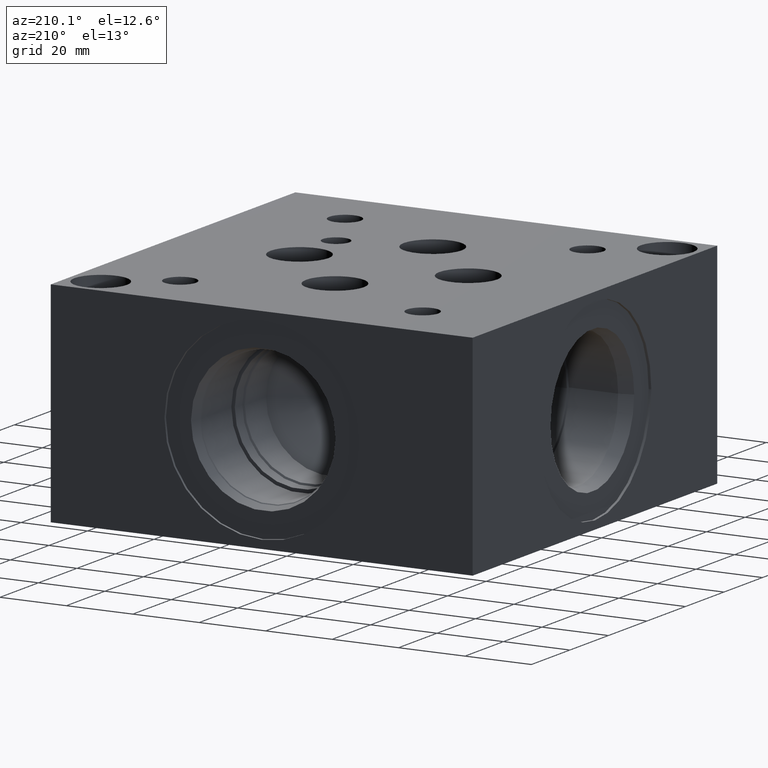
[diagram: clean part render]
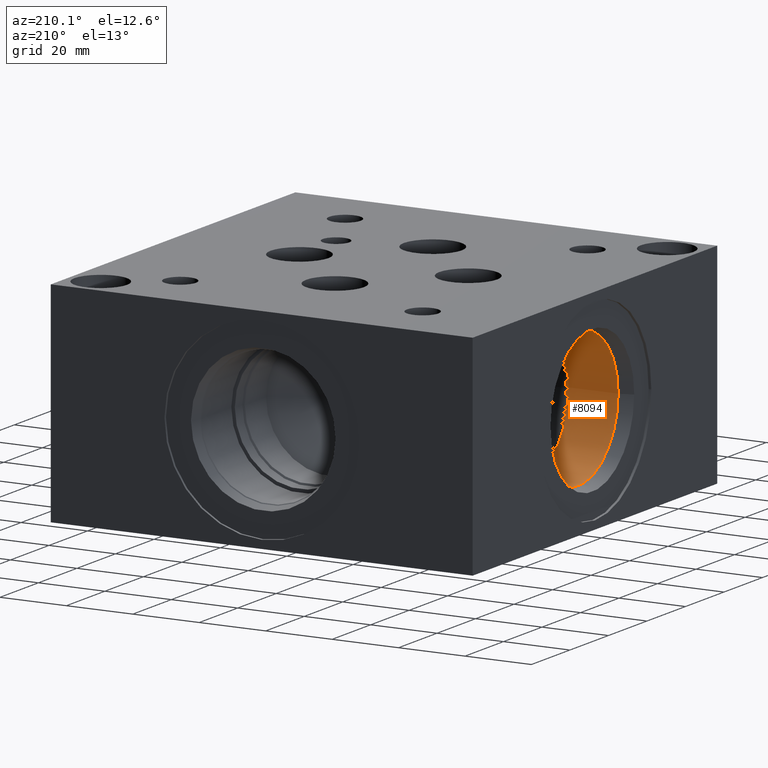
[diagram: same view with one face highlighted and labeled with its STEP entity id]
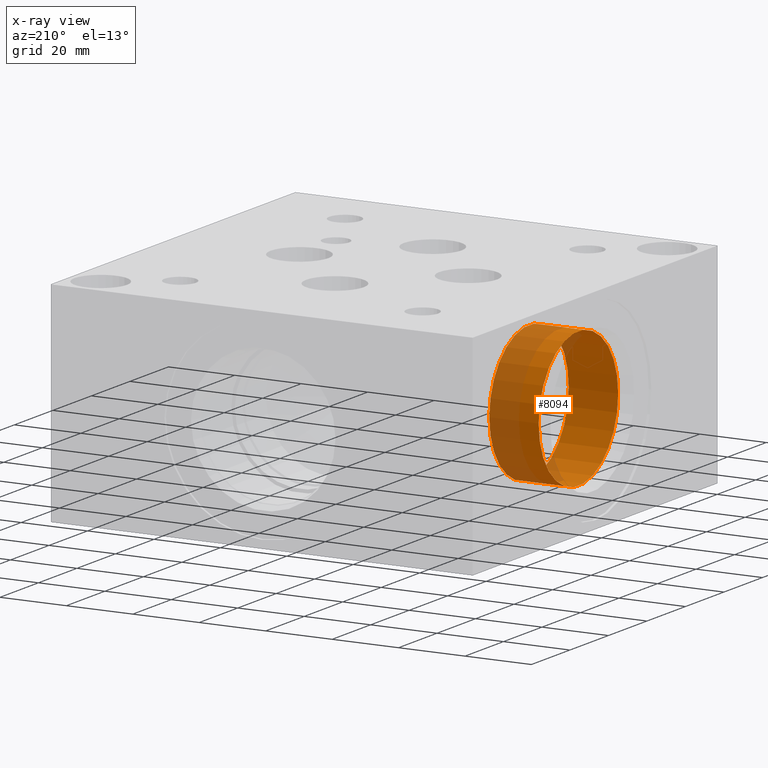
[diagram: x-ray of the same camera — body ghosted, the highlighted face saturated]
A machine part, auxiliary view. The second image highlights one B-rep face of the part: STEP entity #8094.
The next image is the same camera in x-ray: the body ghosted, the highlighted face saturated — about 34% of this face is hidden behind the body in this view.
In plain terms, the highlighted cylindrical surface (bore or boss wall) has radius 20.6375 mm, axis along (-1, 0, 0).
Its self-contained STEP definition (entity closure, byte-faithful):
#27=CYLINDRICAL_SURFACE('',#8428,20.6375);
#112=CIRCLE('',#8425,20.6375);
#113=CIRCLE('',#8426,20.6375);
#115=CIRCLE('',#8429,20.6375);
#1026=FACE_OUTER_BOUND('',#1472,.T.);
#1472=EDGE_LOOP('',(#6859,#6860,#6861,#6862,#6863));
#2236=LINE('',#13897,#2964);
#2964=VECTOR('',#9781,20.6375);
#3672=VERTEX_POINT('',#13888);
#3673=VERTEX_POINT('',#13889);
#3675=VERTEX_POINT('',#13895);
#4764=EDGE_CURVE('',#3672,#3673,#112,.T.);
#4765=EDGE_CURVE('',#3673,#3672,#113,.T.);
#4767=EDGE_CURVE('',#3675,#3675,#115,.T.);
#4768=EDGE_CURVE('',#3675,#3673,#2236,.T.);
#6859=ORIENTED_EDGE('',*,*,#4767,.F.);
#6860=ORIENTED_EDGE('',*,*,#4768,.T.);
#6861=ORIENTED_EDGE('',*,*,#4764,.F.);
#6862=ORIENTED_EDGE('',*,*,#4765,.F.);
#6863=ORIENTED_EDGE('',*,*,#4768,.F.);
#8094=ADVANCED_FACE('',(#1026),#27,.F.);
#8425=AXIS2_PLACEMENT_3D('',#13890,#9771,#9772);
#8426=AXIS2_PLACEMENT_3D('',#13891,#9773,#9774);
#8428=AXIS2_PLACEMENT_3D('',#13894,#9777,#9778);
#8429=AXIS2_PLACEMENT_3D('',#13896,#9779,#9780);
#9771=DIRECTION('center_axis',(-1.,0.,0.));
#9772=DIRECTION('ref_axis',(0.,1.,0.));
#9773=DIRECTION('center_axis',(-1.,0.,0.));
#9774=DIRECTION('ref_axis',(0.,1.,0.));
#9777=DIRECTION('center_axis',(-1.,0.,0.));
#9778=DIRECTION('ref_axis',(0.,1.,0.));
#9779=DIRECTION('center_axis',(1.,0.,0.));
#9780=DIRECTION('ref_axis',(0.,1.,0.));
#9781=DIRECTION('',(1.,0.,0.));
#13888=CARTESIAN_POINT('',(19.8374,84.1375,31.75));
#13889=CARTESIAN_POINT('',(19.8374,42.8625,31.75));
#13890=CARTESIAN_POINT('Origin',(19.8374,63.5,31.75));
#13891=CARTESIAN_POINT('Origin',(19.8374,63.5,31.75));
#13894=CARTESIAN_POINT('Origin',(9.9187,63.5,31.75));
#13895=CARTESIAN_POINT('',(4.97099998253897,42.8625,31.75));
#13896=CARTESIAN_POINT('Origin',(4.97099998253897,63.5,31.75));
#13897=CARTESIAN_POINT('',(9.9187,42.8625,31.75));